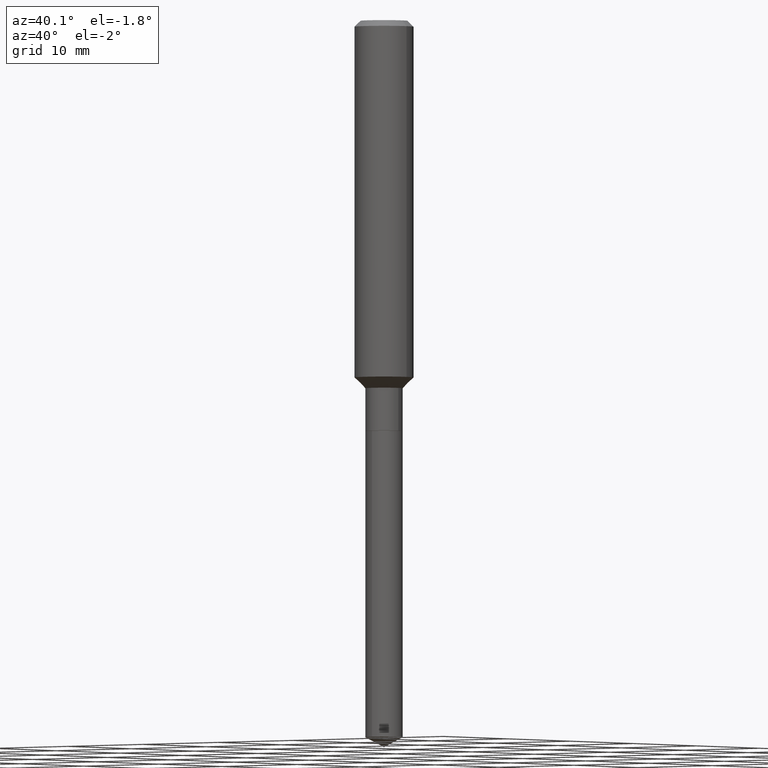
[diagram: clean part render]
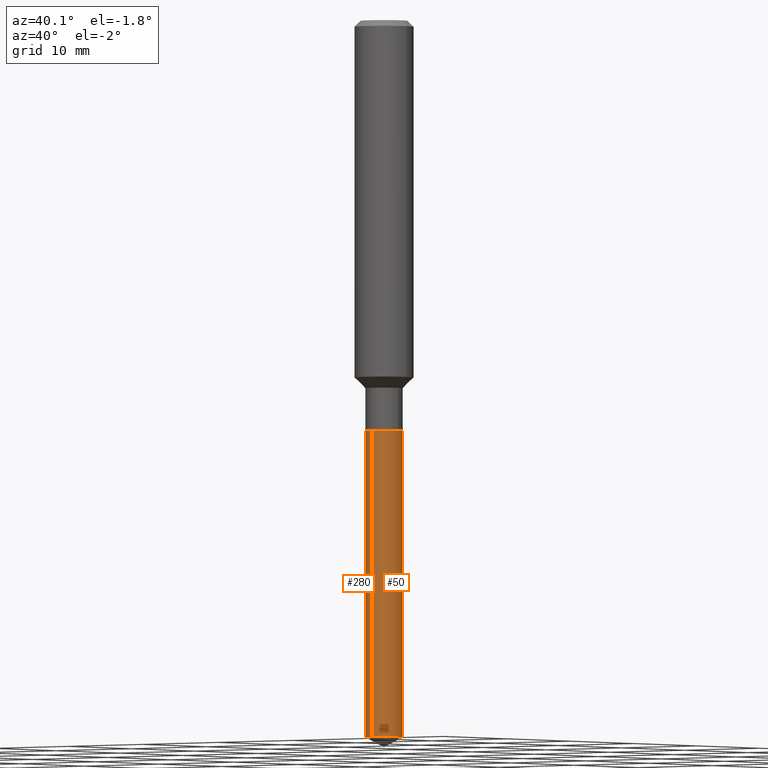
[diagram: same view with one multi-face feature highlighted, each face labeled with its STEP entity id]
A machine part, auxiliary view. The highlighted faces form ONE feature: a constant-radius fillet chain: 2 tangent blend faces with common blend radius 1.8999 mm. The faces share edges in the B-rep.
Their STEP definitions:
[1] entity #280 (Cylinder):
#15 = CARTESIAN_POINT ( 'NONE',  ( -5.223256082908925685E-16, -0.07480000000000575078, -1.645699999999999941 ) ) ;
#17 = DIRECTION ( 'NONE',  ( -2.445522096007376071E-29, 3.491405024784630103E-15, 1.000000000000000000 ) ) ;
#18 = AXIS2_PLACEMENT_3D ( 'NONE', #317, #228, #429 ) ;
#25 = DIRECTION ( 'NONE',  ( -6.982962677686265922E-15, -1.000000000000000000, 3.652203200085913145E-15 ) ) ;
#30 = CARTESIAN_POINT ( 'NONE',  ( 4.024508014338879870E-29, -5.745930839334164827E-15, -1.645700000000000163 ) ) ;
#35 = ORIENTED_EDGE ( 'NONE', *, *, #179, .F. ) ;
#45 = LINE ( 'NONE', #298, #309 ) ;
#47 = AXIS2_PLACEMENT_3D ( 'NONE', #30, #488, #446 ) ;
#49 = CARTESIAN_POINT ( 'NONE',  ( -5.223256082908624932E-16, -0.07480000000001003901, -2.873628134511721388 ) ) ;
#53 = VERTEX_POINT ( 'NONE', #326 ) ;
#83 = CIRCLE ( 'NONE', #282, 0.07480000000000000537 ) ;
#86 = CARTESIAN_POINT ( 'NONE',  ( -5.223256082908924699E-16, -0.07480000000000575078, -1.645699999999999941 ) ) ;
#102 = VERTEX_POINT ( 'NONE', #86 ) ;
#152 = EDGE_CURVE ( 'NONE', #403, #102, #354, .T. ) ;
#160 = ORIENTED_EDGE ( 'NONE', *, *, #448, .T. ) ;
#179 = EDGE_CURVE ( 'NONE', #436, #102, #83, .T. ) ;
#204 = FACE_OUTER_BOUND ( 'NONE', #452, .T. ) ;
#207 = CIRCLE ( 'NONE', #18, 0.07480000000000000537 ) ;
#228 = DIRECTION ( 'NONE',  ( -2.445522096007376351E-29, 3.491405024784630103E-15, 1.000000000000000000 ) ) ;
#257 = CARTESIAN_POINT ( 'NONE',  ( 4.024508014338879870E-29, -5.745930839334164827E-15, -1.645700000000000163 ) ) ;
#265 = CARTESIAN_POINT ( 'NONE',  ( 5.314859663486254817E-16, 0.07479999999999425997, -1.645700000000000385 ) ) ;
#280 = ADVANCED_FACE ( 'NONE', ( #204 ), #369, .T. ) ;
#282 = AXIS2_PLACEMENT_3D ( 'NONE', #257, #377, #25 ) ;
#298 = CARTESIAN_POINT ( 'NONE',  ( 5.314859663485952091E-16, 0.07479999999999425997, -1.645700000000000385 ) ) ;
#309 = VECTOR ( 'NONE', #345, 39.37007874015748143 ) ;
#317 = CARTESIAN_POINT ( 'NONE',  ( 7.027433399596411155E-29, -1.003312529824280430E-14, -2.873628134511721388 ) ) ;
#326 = CARTESIAN_POINT ( 'NONE',  ( 5.314859663486251858E-16, 0.07479999999998998561, -2.873628134511721388 ) ) ;
#345 = DIRECTION ( 'NONE',  ( -2.445522096007376071E-29, 3.491405024784630103E-15, 1.000000000000000000 ) ) ;
#354 = LINE ( 'NONE', #15, #402 ) ;
#358 = ORIENTED_EDGE ( 'NONE', *, *, #152, .T. ) ;
#369 = CYLINDRICAL_SURFACE ( 'NONE', #47, 0.07480000000000000537 ) ;
#371 = ORIENTED_EDGE ( 'NONE', *, *, #409, .F. ) ;
#377 = DIRECTION ( 'NONE',  ( -2.445522096007376351E-29, 3.491405024784630103E-15, 1.000000000000000000 ) ) ;
#402 = VECTOR ( 'NONE', #17, 39.37007874015748143 ) ;
#403 = VERTEX_POINT ( 'NONE', #49 ) ;
#409 = EDGE_CURVE ( 'NONE', #53, #436, #45, .T. ) ;
#429 = DIRECTION ( 'NONE',  ( -6.982962677686266711E-15, -1.000000000000000000, 0.000000000000000000 ) ) ;
#436 = VERTEX_POINT ( 'NONE', #265 ) ;
#446 = DIRECTION ( 'NONE',  ( -6.982962677686266711E-15, -1.000000000000000000, 3.652203200085913145E-15 ) ) ;
#448 = EDGE_CURVE ( 'NONE', #53, #403, #207, .T. ) ;
#452 = EDGE_LOOP ( 'NONE', ( #371, #160, #358, #35 ) ) ;
#488 = DIRECTION ( 'NONE',  ( -2.445522096007376351E-29, 3.491405024784630103E-15, 1.000000000000000000 ) ) ;
[2] entity #50 (Cylinder):
#15 = CARTESIAN_POINT ( 'NONE',  ( -5.223256082908925685E-16, -0.07480000000000575078, -1.645699999999999941 ) ) ;
#17 = DIRECTION ( 'NONE',  ( -2.445522096007376071E-29, 3.491405024784630103E-15, 1.000000000000000000 ) ) ;
#20 = AXIS2_PLACEMENT_3D ( 'NONE', #253, #109, #381 ) ;
#21 = EDGE_LOOP ( 'NONE', ( #212, #320, #57, #157 ) ) ;
#22 = CARTESIAN_POINT ( 'NONE',  ( 4.024508014338879870E-29, -5.745930839334164827E-15, -1.645700000000000163 ) ) ;
#45 = LINE ( 'NONE', #298, #309 ) ;
#49 = CARTESIAN_POINT ( 'NONE',  ( -5.223256082908624932E-16, -0.07480000000001003901, -2.873628134511721388 ) ) ;
#50 = ADVANCED_FACE ( 'NONE', ( #124 ), #244, .T. ) ;
#53 = VERTEX_POINT ( 'NONE', #326 ) ;
#57 = ORIENTED_EDGE ( 'NONE', *, *, #161, .F. ) ;
#86 = CARTESIAN_POINT ( 'NONE',  ( -5.223256082908924699E-16, -0.07480000000000575078, -1.645699999999999941 ) ) ;
#102 = VERTEX_POINT ( 'NONE', #86 ) ;
#109 = DIRECTION ( 'NONE',  ( -2.445522096007376351E-29, 3.491405024784630103E-15, 1.000000000000000000 ) ) ;
#115 = CIRCLE ( 'NONE', #20, 0.07480000000000000537 ) ;
#124 = FACE_OUTER_BOUND ( 'NONE', #21, .T. ) ;
#152 = EDGE_CURVE ( 'NONE', #403, #102, #354, .T. ) ;
#157 = ORIENTED_EDGE ( 'NONE', *, *, #152, .F. ) ;
#158 = DIRECTION ( 'NONE',  ( -6.982962677686266711E-15, -1.000000000000000000, 3.652203200085913145E-15 ) ) ;
#161 = EDGE_CURVE ( 'NONE', #102, #436, #190, .T. ) ;
#170 = EDGE_CURVE ( 'NONE', #403, #53, #115, .T. ) ;
#190 = CIRCLE ( 'NONE', #350, 0.07480000000000000537 ) ;
#212 = ORIENTED_EDGE ( 'NONE', *, *, #170, .T. ) ;
#244 = CYLINDRICAL_SURFACE ( 'NONE', #485, 0.07480000000000000537 ) ;
#253 = CARTESIAN_POINT ( 'NONE',  ( 7.027433399596411155E-29, -1.003312529824280430E-14, -2.873628134511721388 ) ) ;
#259 = DIRECTION ( 'NONE',  ( -6.982962677686265922E-15, -1.000000000000000000, 3.652203200085913145E-15 ) ) ;
#262 = DIRECTION ( 'NONE',  ( -2.445522096007376351E-29, 3.491405024784630103E-15, 1.000000000000000000 ) ) ;
#265 = CARTESIAN_POINT ( 'NONE',  ( 5.314859663486254817E-16, 0.07479999999999425997, -1.645700000000000385 ) ) ;
#298 = CARTESIAN_POINT ( 'NONE',  ( 5.314859663485952091E-16, 0.07479999999999425997, -1.645700000000000385 ) ) ;
#309 = VECTOR ( 'NONE', #345, 39.37007874015748143 ) ;
#320 = ORIENTED_EDGE ( 'NONE', *, *, #409, .T. ) ;
#326 = CARTESIAN_POINT ( 'NONE',  ( 5.314859663486251858E-16, 0.07479999999998998561, -2.873628134511721388 ) ) ;
#345 = DIRECTION ( 'NONE',  ( -2.445522096007376071E-29, 3.491405024784630103E-15, 1.000000000000000000 ) ) ;
#350 = AXIS2_PLACEMENT_3D ( 'NONE', #450, #262, #259 ) ;
#354 = LINE ( 'NONE', #15, #402 ) ;
#381 = DIRECTION ( 'NONE',  ( -6.982962677686266711E-15, -1.000000000000000000, 0.000000000000000000 ) ) ;
#402 = VECTOR ( 'NONE', #17, 39.37007874015748143 ) ;
#403 = VERTEX_POINT ( 'NONE', #49 ) ;
#404 = DIRECTION ( 'NONE',  ( -2.445522096007376351E-29, 3.491405024784630103E-15, 1.000000000000000000 ) ) ;
#409 = EDGE_CURVE ( 'NONE', #53, #436, #45, .T. ) ;
#436 = VERTEX_POINT ( 'NONE', #265 ) ;
#450 = CARTESIAN_POINT ( 'NONE',  ( 4.024508014338879870E-29, -5.745930839334164827E-15, -1.645700000000000163 ) ) ;
#485 = AXIS2_PLACEMENT_3D ( 'NONE', #22, #404, #158 ) ;